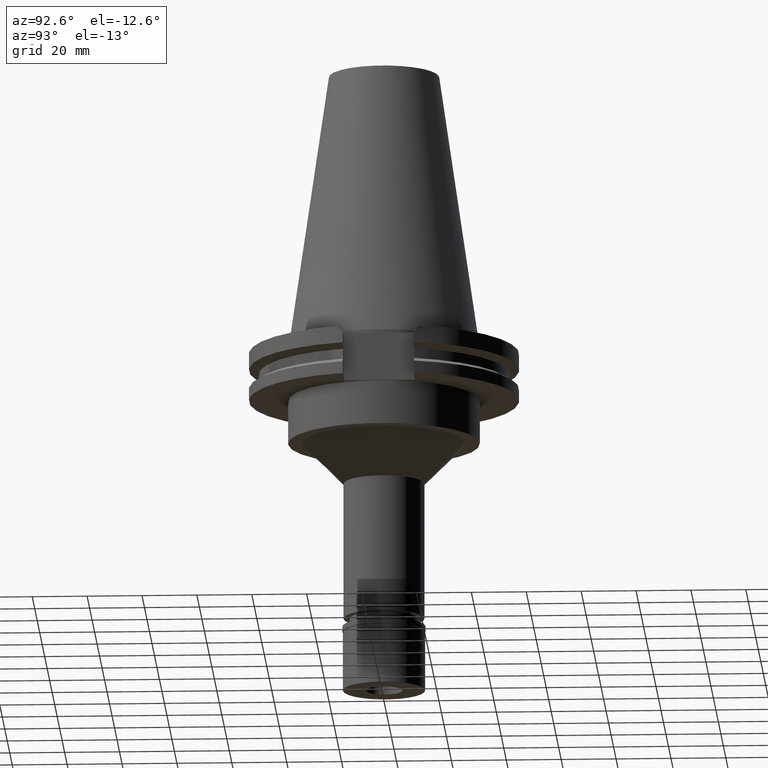
[diagram: clean part render]
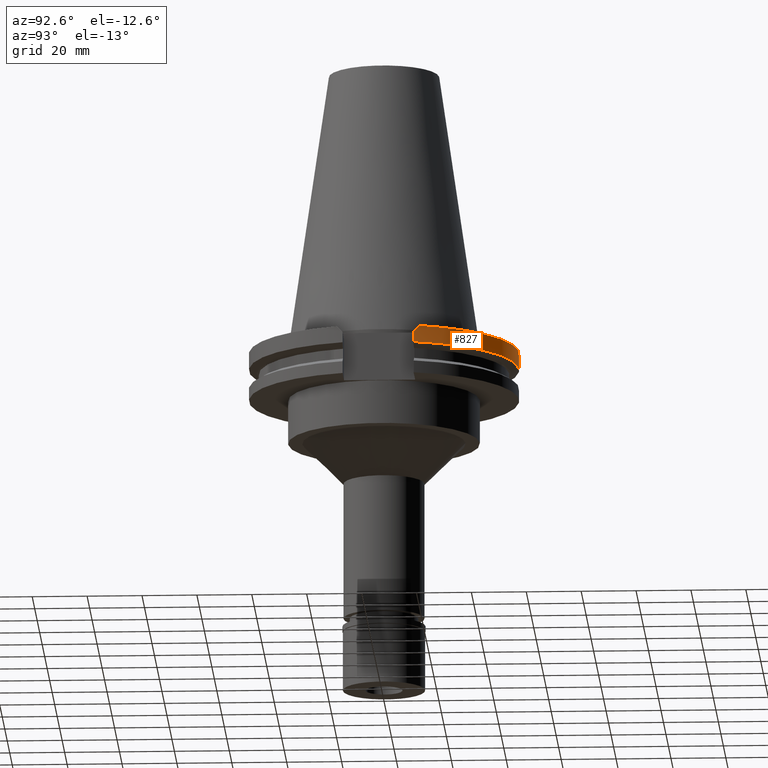
[diagram: same view with one face highlighted and labeled with its STEP entity id]
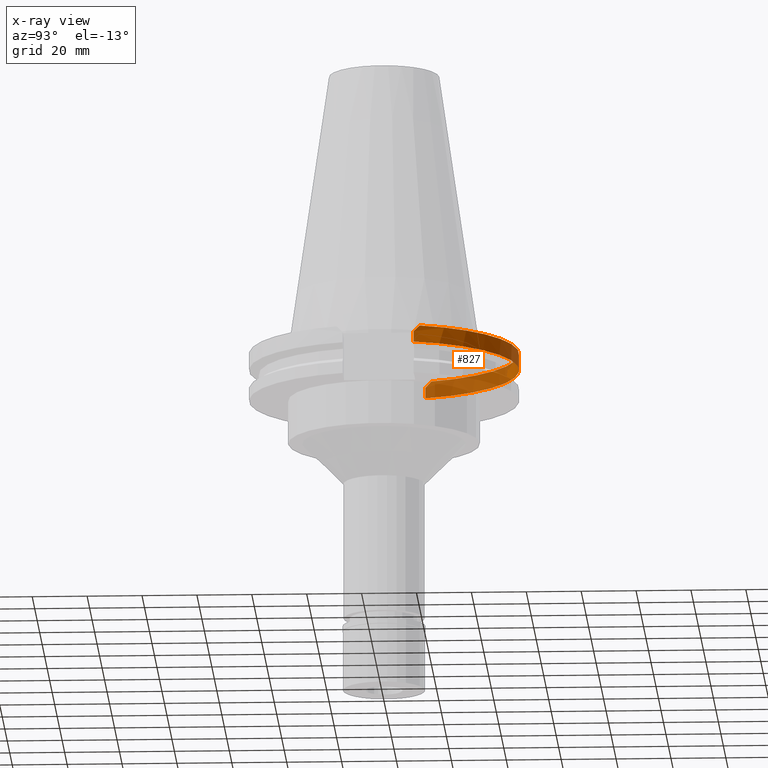
[diagram: x-ray of the same camera — body ghosted, the highlighted face saturated]
A machine part, auxiliary view. The second image highlights one B-rep face of the part: STEP entity #827.
The next image is the same camera in x-ray: the body ghosted, the highlighted face saturated — about 42% of this face is hidden behind the body in this view.
In plain terms, the highlighted cylindrical surface (partial cylindrical patch) has radius 49.2125 mm, axis along (0, 0, -1).
Its self-contained STEP definition (entity closure, byte-faithful):
#90 = ORIENTED_EDGE ( 'NONE', *, *, #3044, .F. ) ;
#187 = LINE ( 'NONE', #2537, #324 ) ;
#198 = CARTESIAN_POINT ( 'NONE',  ( 47.05739607796999735, 14.42433483211999956, -2.230665167879999800 ) ) ;
#217 = CARTESIAN_POINT ( 'NONE',  ( 0.0000000000000000000, 2.602741842227999566E-14, -1.500000000000000000 ) ) ;
#279 = AXIS2_PLACEMENT_3D ( 'NONE', #2119, #2865, #2610 ) ;
#282 = ORIENTED_EDGE ( 'NONE', *, *, #1432, .T. ) ;
#324 = VECTOR ( 'NONE', #2019, 1000.000000000000000 ) ;
#417 = VERTEX_POINT ( 'NONE', #895 ) ;
#429 = LINE ( 'NONE', #2206, #2271 ) ;
#524 = CARTESIAN_POINT ( 'NONE',  ( -46.82089417396999664, 15.15499999999999936, -1.500000000000000000 ) ) ;
#572 = EDGE_CURVE ( 'NONE', #877, #417, #429, .T. ) ;
#630 = FACE_OUTER_BOUND ( 'NONE', #1750, .T. ) ;
#649 = CIRCLE ( 'NONE', #1871, 49.21249999999999858 ) ;
#654 = CIRCLE ( 'NONE', #2093, 49.21250000000001279 ) ;
#728 = DIRECTION ( 'NONE',  ( 0.0000000000000000000, 0.0000000000000000000, -1.000000000000000000 ) ) ;
#827 = ADVANCED_FACE ( 'NONE', ( #630 ), #1659, .T. ) ;
#877 = VERTEX_POINT ( 'NONE', #1985 ) ;
#895 = CARTESIAN_POINT ( 'NONE',  ( -47.47671146204000081, 12.95500000000000007, -7.601333230924999462 ) ) ;
#925 = DIRECTION ( 'NONE',  ( -2.622645846769000281E-13, 3.460435492263999937E-14, -1.000000000000000000 ) ) ;
#951 = CARTESIAN_POINT ( 'NONE',  ( 47.47671146204000081, 12.95500000000000007, -3.700000000000000178 ) ) ;
#1050 = CARTESIAN_POINT ( 'NONE',  ( 46.82089417396999664, 15.15499999999999936, -1.500000000000000000 ) ) ;
#1200 = VERTEX_POINT ( 'NONE', #1864 ) ;
#1231 = CARTESIAN_POINT ( 'NONE',  ( 46.82089417396999664, 15.15499999999999936, -1.500000000000000000 ) ) ;
#1387 = EDGE_CURVE ( 'NONE', #1200, #2048, #187, .T. ) ;
#1397 = ORIENTED_EDGE ( 'NONE', *, *, #1387, .F. ) ;
#1432 = EDGE_CURVE ( 'NONE', #2480, #2020, #649, .T. ) ;
#1492 = B_SPLINE_CURVE_WITH_KNOTS ( 'NONE', 3,
 ( #524, #1743, #2324, #2505 ),
 .UNSPECIFIED., .F., .F.,
 ( 4, 4 ),
 ( 0.0000000000000000000, 1.000000000000000000 ),
 .UNSPECIFIED. ) ;
#1568 = EDGE_CURVE ( 'NONE', #2048, #2020, #2541, .T. ) ;
#1659 = CYLINDRICAL_SURFACE ( 'NONE', #279, 49.21249999999999858 ) ;
#1741 = CARTESIAN_POINT ( 'NONE',  ( 47.27588310256999904, 13.69098379592999848, -2.964016204073000260 ) ) ;
#1743 = CARTESIAN_POINT ( 'NONE',  ( -47.05739607796999735, 14.42433483211999956, -2.230665167879999800 ) ) ;
#1750 = EDGE_LOOP ( 'NONE', ( #90, #282, #2434, #1397, #2289, #1955 ) ) ;
#1791 = DIRECTION ( 'NONE',  ( 0.0000000000000000000, 1.000000000000000000, 0.0000000000000000000 ) ) ;
#1864 = CARTESIAN_POINT ( 'NONE',  ( 47.47671146204000081, 12.95500000000000007, -7.601333230924999462 ) ) ;
#1871 = AXIS2_PLACEMENT_3D ( 'NONE', #217, #728, #1791 ) ;
#1928 = EDGE_CURVE ( 'NONE', #1200, #417, #654, .T. ) ;
#1955 = ORIENTED_EDGE ( 'NONE', *, *, #572, .F. ) ;
#1985 = CARTESIAN_POINT ( 'NONE',  ( -47.47671146204000081, 12.95500000000000007, -3.700000000000000178 ) ) ;
#2019 = DIRECTION ( 'NONE',  ( -2.622645846769000281E-13, -3.642563676068000340E-14, 1.000000000000000000 ) ) ;
#2020 = VERTEX_POINT ( 'NONE', #1050 ) ;
#2048 = VERTEX_POINT ( 'NONE', #3095 ) ;
#2093 = AXIS2_PLACEMENT_3D ( 'NONE', #2769, #2349, #2592 ) ;
#2119 = CARTESIAN_POINT ( 'NONE',  ( 0.0000000000000000000, 2.602741842227999566E-14, 112.5300000000000011 ) ) ;
#2206 = CARTESIAN_POINT ( 'NONE',  ( -47.47671146204000081, 12.95500000000000007, -3.700000000000000178 ) ) ;
#2271 = VECTOR ( 'NONE', #925, 1000.000000000000000 ) ;
#2289 = ORIENTED_EDGE ( 'NONE', *, *, #1928, .T. ) ;
#2324 = CARTESIAN_POINT ( 'NONE',  ( -47.27588310256999904, 13.69098379592999848, -2.964016204073000260 ) ) ;
#2349 = DIRECTION ( 'NONE',  ( 0.0000000000000000000, 0.0000000000000000000, 1.000000000000000000 ) ) ;
#2434 = ORIENTED_EDGE ( 'NONE', *, *, #1568, .F. ) ;
#2480 = VERTEX_POINT ( 'NONE', #2544 ) ;
#2505 = CARTESIAN_POINT ( 'NONE',  ( -47.47671146204000081, 12.95500000000000007, -3.700000000000000178 ) ) ;
#2537 = CARTESIAN_POINT ( 'NONE',  ( 47.47671146204000081, 12.95500000000000007, -7.601333230924999462 ) ) ;
#2541 = B_SPLINE_CURVE_WITH_KNOTS ( 'NONE', 3,
 ( #951, #1741, #198, #1231 ),
 .UNSPECIFIED., .F., .F.,
 ( 4, 4 ),
 ( 0.0000000000000000000, 1.000000000000000000 ),
 .UNSPECIFIED. ) ;
#2544 = CARTESIAN_POINT ( 'NONE',  ( -46.82089417396999664, 15.15499999999999936, -1.500000000000000000 ) ) ;
#2592 = DIRECTION ( 'NONE',  ( 0.9647287063660957562, 0.2632461264922989486, 0.0000000000000000000 ) ) ;
#2610 = DIRECTION ( 'NONE',  ( 0.0000000000000000000, -1.000000000000000000, 0.0000000000000000000 ) ) ;
#2769 = CARTESIAN_POINT ( 'NONE',  ( 0.0000000000000000000, 1.121722380078999823E-14, -7.601333230925999551 ) ) ;
#2865 = DIRECTION ( 'NONE',  ( 0.0000000000000000000, 0.0000000000000000000, -1.000000000000000000 ) ) ;
#3044 = EDGE_CURVE ( 'NONE', #2480, #877, #1492, .T. ) ;
#3095 = CARTESIAN_POINT ( 'NONE',  ( 47.47671146204000081, 12.95500000000000007, -3.700000000000000178 ) ) ;